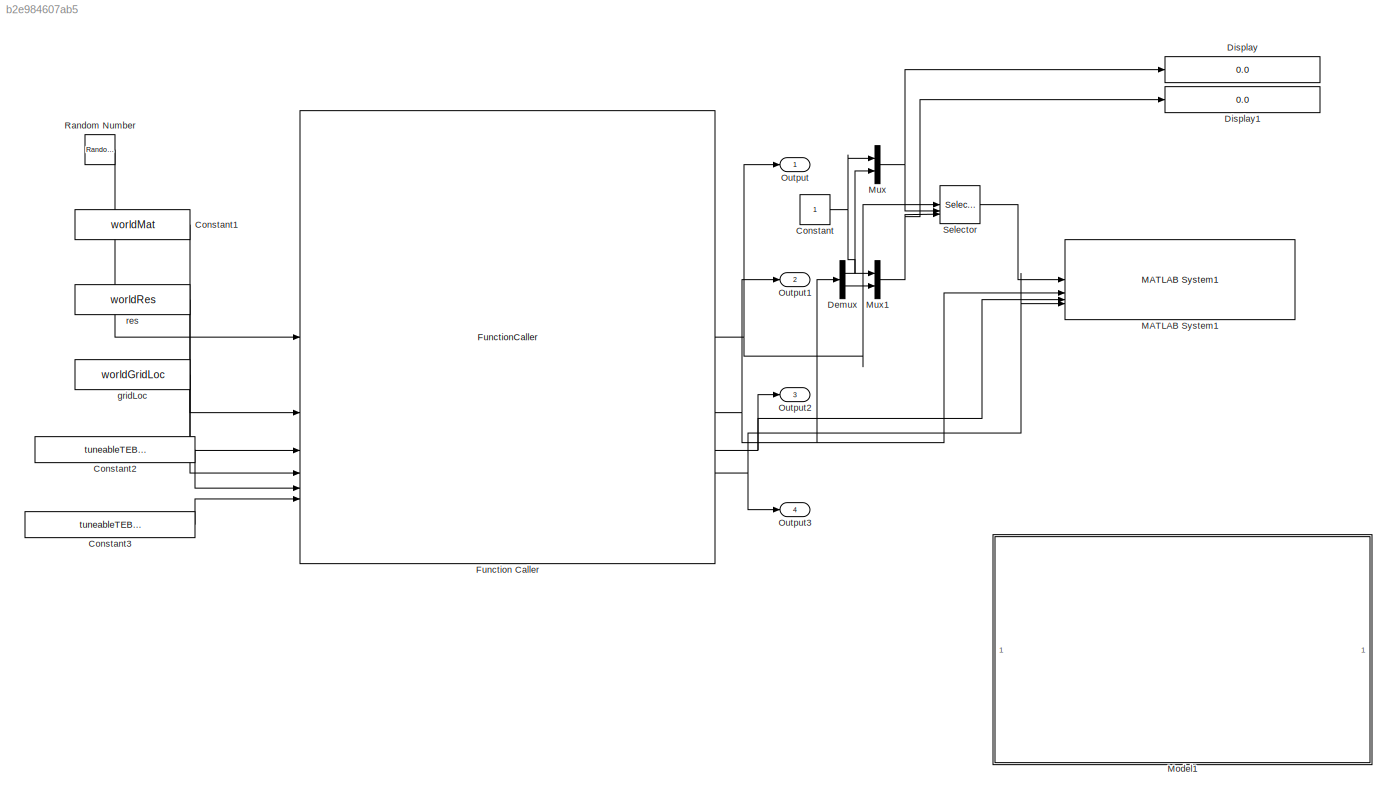
MODEL slx_b2e984607ab5
KIND model
CONFIG AbsTol = auto
CONFIG EnableMultiTasking = off
CONFIG FixedStep = auto
CONFIG InitFcn = extractLocalMapSetup
CONFIG MaxStep = auto
CONFIG MinStep = auto
CONFIG RelTol = 1e-3
CONFIG SampleTimeConstraint = Unconstrained
CONFIG SolverName = FixedStepAuto
CONFIG StartTime = 0.0
CONFIG StopTime = 10.0
BLOCK [Constant] Constant
BLOCK [Constant] Constant1
  Value = worldMat
BLOCK [Constant] Constant2
  Value = tuneableTEBParams.MaxVelocity(1)
BLOCK [Constant] Constant3
  Value = tuneableTEBParams.LookaheadTime
BLOCK [Demux] Demux
  Outputs = 2
BLOCK [Display] Display
  Decimation = 1
BLOCK [Display] Display1
  Decimation = 1
BLOCK [FunctionCaller] Function Caller
  FunctionPrototype = [egoMat,egoGridSize,localRes,egoGridLoc] = extractLocalMap(curpose,globalMat,globalRes,globalGridLoc,maxVel,lookaheadTime)
  InputArgumentSpecifications = <Enter example>
  OutputArgumentSpecifications = <Enter example>
BLOCK [Reference] MATLAB System1  REF=roshelperlib/MATLAB System1  (lib defined in slx_3328ea0e13a5)
  SourceBlock = roshelperlib/MATLAB System1
  SourceType = exampleHelperMapVisualizerSys
BLOCK [ModelReference] Model1
  ModelNameDialog = extractLocalMap_simfcnsvr.slx
  ModelReferenceVersion = 2.0
  ScheduleRates = on
BLOCK [Mux] Mux
  DisplayOption = bar
  Inputs = 2
BLOCK [Mux] Mux1
  DisplayOption = bar
  Inputs = 2
BLOCK [Outport] Output
BLOCK [Outport] Output1
  Port = 2
BLOCK [Outport] Output2
  Port = 3
BLOCK [Outport] Output3
  Port = 4
BLOCK [RandomNumber] Random Number
  Mean = [500 500 0]
  Variance = [100 100 0]
BLOCK [Selector] Selector
  IndexOptions = Starting and ending indices (port),Starting and ending indices (port)
  Indices = [1 3],1
  InputPortWidth = 3
  NumberOfDimensions = 2
  OutputSizes = 1,1
BLOCK [Constant] gridLoc
  Value = worldGridLoc
  VectorParams1D = off
BLOCK [Constant] res
  Value = worldRes
LINE Constant1:1 -> Function Caller:2
LINE Constant2:1 -> Function Caller:5
LINE Constant3:1 -> Function Caller:6
NET Constant:1 -> Mux1:1, Mux:1
LINE Demux:1 -> Mux:2
LINE Demux:2 -> Mux1:2
NET Function Caller:1 -> Output:1, Selector:1
NET Function Caller:2 -> Demux:1, MATLAB System1:2, Output1:1
NET Function Caller:3 -> MATLAB System1:3, Output2:1
NET Function Caller:4 -> MATLAB System1:4, Output3:1
NET Mux1:1 -> Display1:1, Selector:3
NET Mux:1 -> Display:1, Selector:2
LINE Random Number:1 -> Function Caller:1
LINE Selector:1 -> MATLAB System1:1
LINE gridLoc:1 -> Function Caller:4
LINE res:1 -> Function Caller:3
note: NET lines group one-source signal fan-out (src -> all destinations, sorted); 1:1 wires keep LINE
